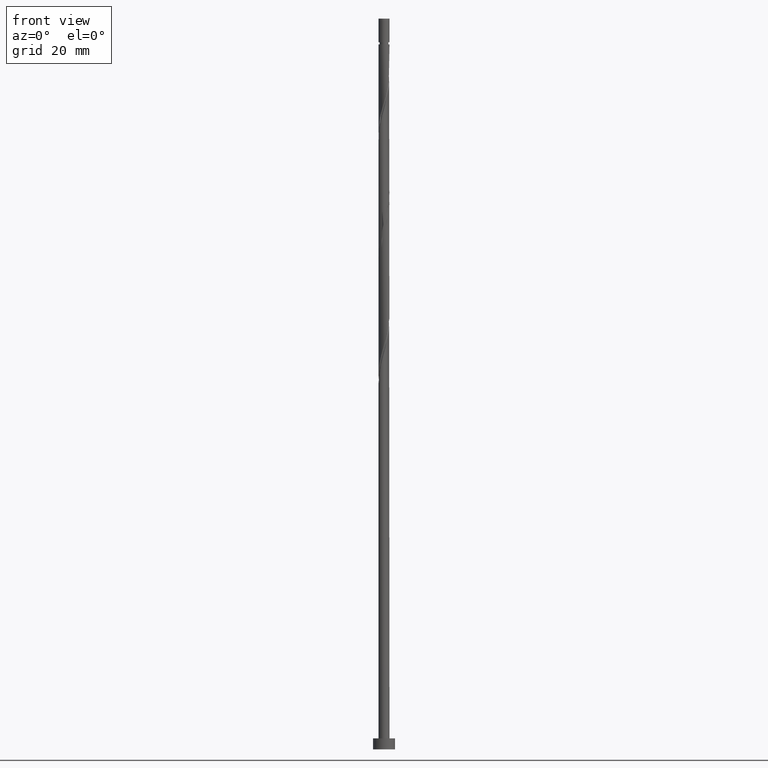
[diagram: clean part render]
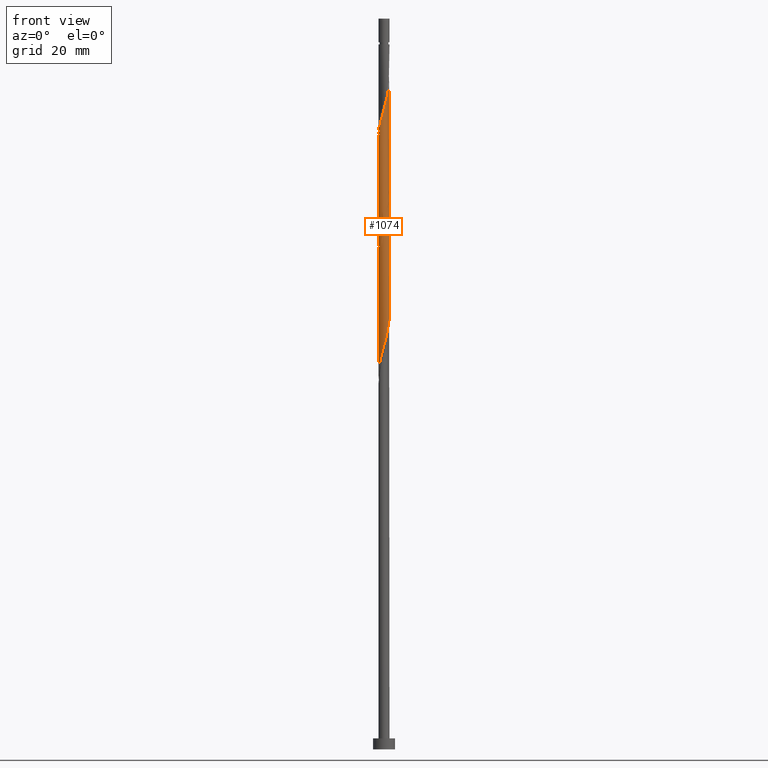
[diagram: same view with one face highlighted and labeled with its STEP entity id]
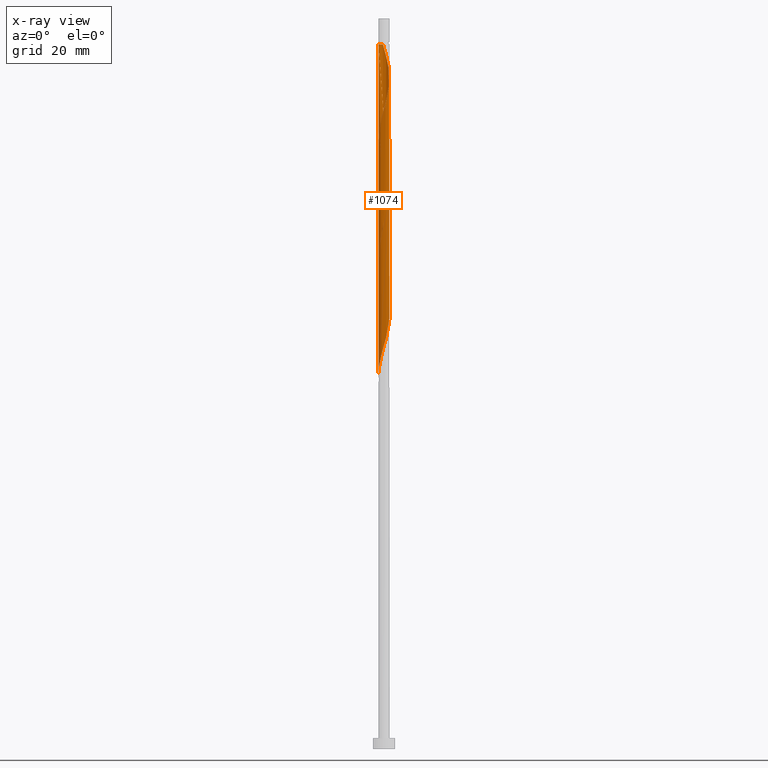
[diagram: x-ray of the same camera — body ghosted, the highlighted face saturated]
A machine part, front view. The second image highlights one B-rep face of the part: STEP entity #1074.
The next image is the same camera in x-ray: the body ghosted, the highlighted face saturated — about 0% of this face is hidden behind the body in this view.
In plain terms, the highlighted cylindrical surface (bore or boss wall) has radius 1.5 mm, axis along (-0, -0, -1).
Its self-contained STEP definition (entity closure, byte-faithful):
#1 = CARTESIAN_POINT ( 'NONE',  ( 1.422305459129118654, 0.4764946809057868382, 120.7228078568822838 ) ) ;
#7 = CARTESIAN_POINT ( 'NONE',  ( -0.6637447469323237703, 1.359573744300762499, 163.0839189679933838 ) ) ;
#10 = CARTESIAN_POINT ( 'NONE',  ( -1.497167474153212607, -0.09213877760036806586, 136.0005856346600410 ) ) ;
#17 = CARTESIAN_POINT ( 'NONE',  ( 1.359573744300762721, 0.6637447469323224380, 154.7505856346601263 ) ) ;
#23 = CARTESIAN_POINT ( 'NONE',  ( 1.497167474153212607, 0.09213877760036749687, 119.3339189679934123 ) ) ;
#27 = CARTESIAN_POINT ( 'NONE',  ( 1.422305459129118654, 0.4764946809057868382, 154.0561411902156692 ) ) ;
#31 = CARTESIAN_POINT ( 'NONE',  ( -0.2984962311319871997, -1.470000000000000195, 142.9450300791045265 ) ) ;
#34 = EDGE_LOOP ( 'NONE', ( #411, #795, #1118, #253, #500, #1050, #240, #874 ) ) ;
#40 = CARTESIAN_POINT ( 'NONE',  ( -0.8455530274166268567, -1.254606684622246782, 107.5283634124378409 ) ) ;
#69 = DIRECTION ( 'NONE',  ( -0.000000000000000000, -0.000000000000000000, -1.000000000000000000 ) ) ;
#71 = CYLINDRICAL_SURFACE ( 'NONE', #860, 1.500000000000000222 ) ;
#73 = CARTESIAN_POINT ( 'NONE',  ( -1.500000000000001110, -0.1507556722888847844, 167.4148897930836881 ) ) ;
#81 = CARTESIAN_POINT ( 'NONE',  ( -0.2984962311320309425, 1.470000000000440732, 192.9450300791046118 ) ) ;
#90 = CARTESIAN_POINT ( 'NONE',  ( 1.470000000000001528, 0.2984962311319869221, 184.6116967457711837 ) ) ;
#99 = CARTESIAN_POINT ( 'NONE',  ( 1.430702225651051984, 0.4920254025854590152, 185.3061411902155555 ) ) ;
#110 = CARTESIAN_POINT ( 'NONE',  ( 1.141457610771798636, -0.9930117713720176820, 179.7505856346600126 ) ) ;
#120 =( BOUNDED_CURVE ( )  B_SPLINE_CURVE ( 2, ( #1301, #1556, #933, #397, #762, #873, #1007, #1140, #751, #7, #1134, #390, #1270, #1020, #1257, #1507, #145, #247, #258, #401, #1523, #17, #27, #1532, #409, #907, #789 ),
 .UNSPECIFIED., .F., .T. ) 
 B_SPLINE_CURVE_WITH_KNOTS ( ( 3, 2, 2, 2, 2, 2, 2, 2, 2, 2, 2, 2, 2, 3 ),
 ( 0.4295317669814463502, 0.4375000000000000000, 0.4479166666666666852, 0.4583333333333333148, 0.4687500000000000000, 0.4791666666666666852, 0.4895833333333333148, 0.5000000000000000000, 0.5104166666666666297, 0.5208333333333333703, 0.5312500000000000000, 0.5416666666666666297, 0.5520833333333333703, 0.5545317669814464612 ),
 .UNSPECIFIED. ) 
 CURVE ( )  GEOMETRIC_REPRESENTATION_ITEM ( )  RATIONAL_B_SPLINE_CURVE ( ( 0.9062941362546607094, 0.9031415850403650136, 0.9090909090909403689, 0.9013135103398587367, 0.9090909090909403689, 0.9013135103398587367, 0.9090909090909403689, 0.9013135103398587367, 0.9090909090909403689, 0.9013135103398587367, 0.9090909090909403689, 0.9013135103398587367, 0.9090909090909403689, 0.9013135103398587367, 0.9090909090909403689, 0.9013135103398587367, 0.9090909090909403689, 0.9013135103398587367, 0.9090909090909403689, 0.9013135103398587367, 0.9090909090909403689, 0.9013135103398587367, 0.9090909090909403689, 0.9013135103398587367, 0.9090909090909403689, 0.9072628343904339809, 0.9062941362546604873 ) ) 
 REPRESENTATION_ITEM ( '' )  );
#121 = CARTESIAN_POINT ( 'NONE',  ( -0.1049670596785155646, -1.509297774348951293, 143.6394745235489552 ) ) ;
#129 = CARTESIAN_POINT ( 'NONE',  ( 1.485037173957474588, 0.2892446148792506277, 120.0283634124378267 ) ) ;
#131 = VERTEX_POINT ( 'NONE', #1260 ) ;
#140 = CARTESIAN_POINT ( 'NONE',  ( 0.09213877760036760789, -1.497167474153212607, 144.3339189679933270 ) ) ;
#145 = CARTESIAN_POINT ( 'NONE',  ( 0.6687892150010441572, 1.342654455136647718, 158.2228078568823264 ) ) ;
#149 = CARTESIAN_POINT ( 'NONE',  ( 0.9935053190942129131, 1.123809227997130566, 123.5005856346600837 ) ) ;
#157 = CARTESIAN_POINT ( 'NONE',  ( 0.2892446148792507388, -1.485037173957474588, 145.0283634124378409 ) ) ;
#166 = CARTESIAN_POINT ( 'NONE',  ( -0.6687892150010432690, -1.342654455136647940, 108.2228078568822838 ) ) ;
#173 = CARTESIAN_POINT ( 'NONE',  ( 0.4764946809057873933, -1.422305459129118654, 112.3894745235489410 ) ) ;
#177 = DIRECTION ( 'NONE',  ( -0.000000000000000000, -0.000000000000000000, -1.000000000000000000 ) ) ;
#237 = CARTESIAN_POINT ( 'NONE',  ( -0.8283782591521712257, -1.250515677536281123, 172.1116967457712121 ) ) ;
#240 = ORIENTED_EDGE ( 'NONE', *, *, #323, .T. ) ;
#241 = CARTESIAN_POINT ( 'NONE',  ( -1.359573744300762721, -0.6637447469323233262, 138.0839189679933838 ) ) ;
#244 = CARTESIAN_POINT ( 'NONE',  ( 1.123809227997133231, 0.9935053190942123580, 187.3894745235489268 ) ) ;
#245 = EDGE_CURVE ( 'NONE', #1503, #511, #1051, .T. ) ;
#247 = CARTESIAN_POINT ( 'NONE',  ( 0.8455530274166275229, 1.254606684622246338, 157.5283634124378409 ) ) ;
#252 = CARTESIAN_POINT ( 'NONE',  ( 1.509297774348951293, -0.1049670596785156618, 118.6394745235489552 ) ) ;
#253 = ORIENTED_EDGE ( 'NONE', *, *, #731, .T. ) ;
#258 = CARTESIAN_POINT ( 'NONE',  ( 0.9935053190942129131, 1.123809227997130566, 156.8339189679933838 ) ) ;
#263 = CARTESIAN_POINT ( 'NONE',  ( -1.470000000000000195, 0.2984962311319871997, 134.6116967457711837 ) ) ;
#273 = CARTESIAN_POINT ( 'NONE',  ( 0.1049670596785151205, 1.509297774348950849, 126.9728078568823122 ) ) ;
#320 = VERTEX_POINT ( 'NONE', #679 ) ;
#322 = DIRECTION ( 'NONE',  ( -1.000000000000000000, 0.000000000000000000, 0.000000000000000000 ) ) ;
#323 = EDGE_CURVE ( 'NONE', #1619, #1412, #1177, .T. ) ;
#342 = CARTESIAN_POINT ( 'NONE',  ( 0.4764946809057893917, 1.422305459129119765, 190.1672523013266414 ) ) ;
#357 = CARTESIAN_POINT ( 'NONE',  ( -0.6637447469323254357, -1.359573744300763609, 172.8061411902155555 ) ) ;
#368 = CARTESIAN_POINT ( 'NONE',  ( 0.4920254025854602919, 1.430702225651048876, 125.5839189679934265 ) ) ;
#369 = EDGE_CURVE ( 'NONE', #511, #1412, #120, .T. ) ;
#372 = CARTESIAN_POINT ( 'NONE',  ( 0.8283782591521714478, 1.250515677536281123, 188.7783634124378125 ) ) ;
#376 = CARTESIAN_POINT ( 'NONE',  ( 0.8283782591521688943, -1.250515677536280457, 147.1116967457711837 ) ) ;
#384 = CARTESIAN_POINT ( 'NONE',  ( 0.9930117713720151285, -1.141457610771798414, 147.8061411902155839 ) ) ;
#390 = CARTESIAN_POINT ( 'NONE',  ( -0.2892446148792516825, 1.485037173957474366, 161.6950300791044697 ) ) ;
#396 = CARTESIAN_POINT ( 'NONE',  ( -0.8283782591521697825, 1.250515677536280235, 130.4450300791044981 ) ) ;
#397 = CARTESIAN_POINT ( 'NONE',  ( -1.430702225651049320, 0.4920254025854591262, 167.2505856346600126 ) ) ;
#401 = CARTESIAN_POINT ( 'NONE',  ( 1.141457610771798414, 0.9930117713720151285, 156.1394745235489836 ) ) ;
#405 = CARTESIAN_POINT ( 'NONE',  ( 1.254606684622246338, -0.8455530274166274118, 115.8616967457711695 ) ) ;
#409 = CARTESIAN_POINT ( 'NONE',  ( 1.497167474153212607, 0.09213877760036749687, 152.6672523013267551 ) ) ;
#411 = ORIENTED_EDGE ( 'NONE', *, *, #245, .F. ) ;
#413 = CARTESIAN_POINT ( 'NONE',  ( 0.2892446148792507388, -1.485037173957474588, 111.6950300791044981 ) ) ;
#421 = CARTESIAN_POINT ( 'NONE',  ( -1.359573744300762721, -0.6637447469323233262, 104.7505856346600410 ) ) ;
#464 = CARTESIAN_POINT ( 'NONE',  ( 1.250515677536280901, -0.8283782591521717809, 180.4450300791044413 ) ) ;
#471 = CARTESIAN_POINT ( 'NONE',  ( 0.2984962311319870332, -1.470000000000001528, 176.2783634124378409 ) ) ;
#478 = DIRECTION ( 'NONE',  ( -0.000000000000000000, -0.000000000000000000, -1.000000000000000000 ) ) ;
#480 = CARTESIAN_POINT ( 'NONE',  ( 1.342654455136650382, 0.6687892150010426029, 186.0005856346600410 ) ) ;
#494 = CARTESIAN_POINT ( 'NONE',  ( -1.500000000000000222, -2.691681199851567309E-16, 169.0085967343145796 ) ) ;
#499 = CARTESIAN_POINT ( 'NONE',  ( 1.497167474153215050, -0.09213877760036973119, 183.2228078568822696 ) ) ;
#500 = ORIENTED_EDGE ( 'NONE', *, *, #1367, .F. ) ;
#505 = CARTESIAN_POINT ( 'NONE',  ( 1.141457610771798414, 0.9930117713720151285, 122.8061411902156124 ) ) ;
#511 = VERTEX_POINT ( 'NONE', #494 ) ;
#525 =( BOUNDED_CURVE ( )  B_SPLINE_CURVE ( 2, ( #1024, #893, #647, #775, #654, #1502, #1006, #384, #376, #1153, #633, #157, #140, #121, #31, #1372, #640, #989, #872, #1518, #1510, #241, #883, #1139, #10, #1388, #263, #1495, #750, #761, #1243, #1130, #396, #1398, #626, #1378, #1252, #273, #768, #368, #902, #1274, #149, #505, #744, #1146, #1, #129, #23, #252, #530, #866, #1528, #405, #1124, #1405, #1626, #1280, #173, #413, #786, #1176, #1041, #1424, #166, #40, #548, #1543, #912, #421, #1325, #1192, #1316, #661, #1061 ),
 .UNSPECIFIED., .F., .T. ) 
 B_SPLINE_CURVE_WITH_KNOTS ( ( 3, 2, 2, 2, 2, 2, 2, 2, 2, 2, 2, 2, 2, 2, 2, 2, 2, 2, 2, 2, 2, 2, 2, 2, 2, 2, 2, 2, 2, 2, 2, 2, 2, 2, 2, 2, 2, 3 ),
 ( 0.5545317669814464612, 0.5625000000000000000, 0.5729166666666666297, 0.5833333333333333703, 0.5937500000000000000, 0.6041666666666666297, 0.6145833333333333703, 0.6250000000000000000, 0.6354166666666666297, 0.6458333333333333703, 0.6562500000000000000, 0.6666666666666666297, 0.6770833333333333703, 0.6875000000000000000, 0.6979166666666666297, 0.7083333333333333703, 0.7187500000000000000, 0.7291666666666666297, 0.7395833333333333703, 0.7500000000000000000, 0.7604166666666666297, 0.7708333333333333703, 0.7812500000000000000, 0.7916666666666666297, 0.8020833333333333703, 0.8125000000000000000, 0.8229166666666666297, 0.8333333333333333703, 0.8437500000000000000, 0.8541666666666666297, 0.8645833333333333703, 0.8750000000000000000, 0.8854166666666666297, 0.8958333333333333703, 0.9062500000000000000, 0.9166666666666667407, 0.9270833333333334814, 0.9295317669814462391 ),
 .UNSPECIFIED. ) 
 CURVE ( )  GEOMETRIC_REPRESENTATION_ITEM ( )  RATIONAL_B_SPLINE_CURVE ( ( 0.9062941362546604873, 0.9031415850403650136, 0.9090909090909403689, 0.9013135103398587367, 0.9090909090909403689, 0.9013135103398587367, 0.9090909090909403689, 0.9013135103398587367, 0.9090909090909403689, 0.9013135103398587367, 0.9090909090909403689, 0.9013135103398587367, 0.9090909090909403689, 0.9013135103398587367, 0.9090909090909403689, 0.9013135103398587367, 0.9090909090909403689, 0.9013135103398587367, 0.9090909090909403689, 0.9013135103398587367, 0.9090909090909403689, 0.9013135103398587367, 0.9090909090909403689, 0.9013135103398587367, 0.9090909090909403689, 0.9013135103398587367, 0.9090909090909403689, 0.9013135103398587367, 0.9090909090909403689, 0.9013135103398587367, 0.9090909090909403689, 0.9013135103398587367, 0.9090909090909403689, 0.9013135103398587367, 0.9090909090909403689, 0.9013135103398587367, 0.9090909090909403689, 0.9013135103398587367, 0.9090909090909403689, 0.9013135103398587367, 0.9090909090909403689, 0.9013135103398587367, 0.9090909090909403689, 0.9013135103398587367, 0.9090909090909403689, 0.9013135103398587367, 0.9090909090909403689, 0.9013135103398587367, 0.9090909090909403689, 0.9013135103398587367, 0.9090909090909403689, 0.9013135103398587367, 0.9090909090909403689, 0.9013135103398587367, 0.9090909090909403689, 0.9013135103398587367, 0.9090909090909403689, 0.9013135103398587367, 0.9090909090909403689, 0.9013135103398587367, 0.9090909090909403689, 0.9013135103398587367, 0.9090909090909403689, 0.9013135103398587367, 0.9090909090909403689, 0.9013135103398587367, 0.9090909090909403689, 0.9013135103398587367, 0.9090909090909403689, 0.9013135103398587367, 0.9090909090909403689, 0.9013135103398587367, 0.9090909090909403689, 0.9072628343904342030, 0.9062941362546607094 ) ) 
 REPRESENTATION_ITEM ( '' )  );
#530 = CARTESIAN_POINT ( 'NONE',  ( 1.470000000000000195, -0.2984962311319873107, 117.9450300791045265 ) ) ;
#548 = CARTESIAN_POINT ( 'NONE',  ( -0.9935053190942129131, -1.123809227997130789, 106.8339189679934265 ) ) ;
#574 = CARTESIAN_POINT ( 'NONE',  ( -1.499999999999988676, 0.000000000000000000, 192.9450300791045265 ) ) ;
#576 = FACE_OUTER_BOUND ( 'NONE', #34, .T. ) ;
#582 = DIRECTION ( 'NONE',  ( -0.000000000000000000, -0.000000000000000000, -1.000000000000000000 ) ) ;
#591 = CARTESIAN_POINT ( 'NONE',  ( 0.1049670596785144822, -1.509297774348952625, 175.5839189679934407 ) ) ;
#609 = CARTESIAN_POINT ( 'NONE',  ( -1.123809227997133009, -0.9935053190942130241, 170.7228078568822696 ) ) ;
#626 = CARTESIAN_POINT ( 'NONE',  ( -0.4764946809057876154, 1.422305459129118654, 129.0561411902156408 ) ) ;
#633 = CARTESIAN_POINT ( 'NONE',  ( 0.4764946809057873933, -1.422305459129118654, 145.7228078568822127 ) ) ;
#640 = CARTESIAN_POINT ( 'NONE',  ( -0.6687892150010432690, -1.342654455136647940, 141.5561411902156408 ) ) ;
#647 = CARTESIAN_POINT ( 'NONE',  ( 1.470000000000000195, -0.2984962311319873107, 151.2783634124378409 ) ) ;
#654 = CARTESIAN_POINT ( 'NONE',  ( 1.342654455136647718, -0.6687892150010440462, 149.8894745235489268 ) ) ;
#661 = CARTESIAN_POINT ( 'NONE',  ( -1.500000000000000000, -0.04611292748651049656, 102.5050937556760857 ) ) ;
#675 =( BOUNDED_CURVE ( )  B_SPLINE_CURVE ( 2, ( #949, #73, #1578, #1338, #1482, #1375, #609, #862, #237, #357, #1086, #1346, #1102, #591, #471, #1606, #1223, #970, #1233, #110, #464, #1238, #1110, #1369, #499, #868, #90, #99, #480, #1214, #244, #845, #372, #854, #342, #1206, #1588, #1361, #81 ),
 .UNSPECIFIED., .F., .T. ) 
 B_SPLINE_CURVE_WITH_KNOTS ( ( 3, 2, 2, 2, 2, 2, 2, 2, 2, 2, 2, 2, 2, 2, 2, 2, 2, 2, 2, 3 ),
 ( 0.5545317669814463502, 0.5625000000000000000, 0.5729166666666667407, 0.5833333333333332593, 0.5937500000000000000, 0.6041666666666667407, 0.6145833333333332593, 0.6250000000000000000, 0.6354166666666667407, 0.6458333333333332593, 0.6562500000000000000, 0.6666666666666668517, 0.6770833333333333703, 0.6875000000000001110, 0.6979166666666668517, 0.7083333333333333703, 0.7187500000000001110, 0.7291666666666668517, 0.7395833333333333703, 0.7500000000000001110 ),
 .UNSPECIFIED. ) 
 CURVE ( )  GEOMETRIC_REPRESENTATION_ITEM ( )  RATIONAL_B_SPLINE_CURVE ( ( 0.9062941362546661495, 0.9031415850403706758, 0.9090909090909460311, 0.9013135103398642878, 0.9090909090909460311, 0.9013135103398642878, 0.9090909090909460311, 0.9013135103398642878, 0.9090909090909460311, 0.9013135103398642878, 0.9090909090909460311, 0.9013135103398642878, 0.9090909090909460311, 0.9013135103398642878, 0.9090909090909460311, 0.9013135103398642878, 0.9090909090909460311, 0.9013135103398642878, 0.9090909090909460311, 0.9013135103398642878, 0.9090909090909460311, 0.9013135103398642878, 0.9090909090909460311, 0.9013135103398642878, 0.9090909090909460311, 0.9013135103398642878, 0.9090909090909460311, 0.9013135103398642878, 0.9090909090909460311, 0.9013135103398642878, 0.9090909090909460311, 0.9013135103398642878, 0.9090909090909460311, 0.9013135103398642878, 0.9090909090909460311, 0.9013135103398642878, 0.9090909090909460311, 0.9013135103398642878, 0.9090909090909460311 ) ) 
 REPRESENTATION_ITEM ( '' )  );
#679 = CARTESIAN_POINT ( 'NONE',  ( -0.2984962311320309425, 1.470000000000440732, 192.9450300791046118 ) ) ;
#698 = CARTESIAN_POINT ( 'NONE',  ( -1.500000000000000222, 0.000000000000000000, 200.0000000000000000 ) ) ;
#731 = EDGE_CURVE ( 'NONE', #131, #1382, #828, .T. ) ;
#744 = CARTESIAN_POINT ( 'NONE',  ( 1.250515677536280235, 0.8283782591521694494, 122.1116967457711837 ) ) ;
#750 = CARTESIAN_POINT ( 'NONE',  ( -1.342654455136647940, 0.6687892150010432690, 133.2228078568822980 ) ) ;
#751 = CARTESIAN_POINT ( 'NONE',  ( -0.8283782591521697825, 1.250515677536280235, 163.7783634124378409 ) ) ;
#761 = CARTESIAN_POINT ( 'NONE',  ( -1.254606684622246782, 0.8455530274166268567, 132.5283634124378409 ) ) ;
#762 = CARTESIAN_POINT ( 'NONE',  ( -1.342654455136647940, 0.6687892150010432690, 166.5561411902156408 ) ) ;
#768 = CARTESIAN_POINT ( 'NONE',  ( 0.2984962311319873107, 1.470000000000000195, 126.2783634124378693 ) ) ;
#775 = CARTESIAN_POINT ( 'NONE',  ( 1.430702225651048876, -0.4920254025854601809, 150.5839189679933838 ) ) ;
#786 = CARTESIAN_POINT ( 'NONE',  ( 0.09213877760036760789, -1.497167474153212607, 111.0005856346600694 ) ) ;
#789 = CARTESIAN_POINT ( 'NONE',  ( 1.500000000000000222, 1.435563306587502499E-15, 152.3419300676478940 ) ) ;
#795 = ORIENTED_EDGE ( 'NONE', *, *, #1437, .T. ) ;
#802 = EDGE_CURVE ( 'NONE', #131, #320, #675, .T. ) ;
#810 = CARTESIAN_POINT ( 'NONE',  ( 0.000000000000000000, 0.000000000000000000, 192.9450300791045265 ) ) ;
#822 = VECTOR ( 'NONE', #69, 1000.000000000000000 ) ;
#828 = LINE ( 'NONE', #698, #1463 ) ;
#845 = CARTESIAN_POINT ( 'NONE',  ( 0.9930117713720183481, 1.141457610771798192, 188.0839189679934123 ) ) ;
#854 = CARTESIAN_POINT ( 'NONE',  ( 0.6637447469323256577, 1.359573744300763387, 189.4728078568822696 ) ) ;
#860 = AXIS2_PLACEMENT_3D ( 'NONE', #1426, #582, #1077 ) ;
#862 = CARTESIAN_POINT ( 'NONE',  ( -0.9930117713720176820, -1.141457610771798636, 171.4172523013267266 ) ) ;
#866 = CARTESIAN_POINT ( 'NONE',  ( 1.430702225651048876, -0.4920254025854601809, 117.2505856346600552 ) ) ;
#868 = CARTESIAN_POINT ( 'NONE',  ( 1.509297774348952625, 0.1049670596785136911, 183.9172523013267551 ) ) ;
#871 = VECTOR ( 'NONE', #177, 1000.000000000000000 ) ;
#872 = CARTESIAN_POINT ( 'NONE',  ( -0.9935053190942129131, -1.123809227997130789, 140.1672523013266982 ) ) ;
#873 = CARTESIAN_POINT ( 'NONE',  ( -1.254606684622246782, 0.8455530274166268567, 165.8616967457711837 ) ) ;
#874 = ORIENTED_EDGE ( 'NONE', *, *, #369, .F. ) ;
#883 = CARTESIAN_POINT ( 'NONE',  ( -1.422305459129118654, -0.4764946809057875043, 137.3894745235489552 ) ) ;
#893 = CARTESIAN_POINT ( 'NONE',  ( 1.500000000000000222, -0.1507556722888859502, 151.8085036984586225 ) ) ;
#902 = CARTESIAN_POINT ( 'NONE',  ( 0.6687892150010441572, 1.342654455136647718, 124.8894745235489410 ) ) ;
#907 = CARTESIAN_POINT ( 'NONE',  ( 1.500000000000000888, 0.04611292748650581280, 152.5050937556760857 ) ) ;
#912 = CARTESIAN_POINT ( 'NONE',  ( -1.250515677536280013, -0.8283782591521695604, 105.4450300791044839 ) ) ;
#933 = CARTESIAN_POINT ( 'NONE',  ( -1.470000000000000195, 0.2984962311319871997, 167.9450300791045265 ) ) ;
#940 = CARTESIAN_POINT ( 'NONE',  ( 1.500000000000000222, 1.836970198721030181E-16, 192.9450300791046118 ) ) ;
#949 = CARTESIAN_POINT ( 'NONE',  ( -1.500000000000002220, 9.570422043916622849E-16, 166.8814634238944450 ) ) ;
#970 = CARTESIAN_POINT ( 'NONE',  ( 0.8455530274166269677, -1.254606684622249224, 178.3616967457711837 ) ) ;
#989 = CARTESIAN_POINT ( 'NONE',  ( -0.8455530274166268567, -1.254606684622246782, 140.8616967457711837 ) ) ;
#1006 = CARTESIAN_POINT ( 'NONE',  ( 1.123809227997130789, -0.9935053190942129131, 148.5005856346600410 ) ) ;
#1007 = CARTESIAN_POINT ( 'NONE',  ( -1.123809227997131233, 0.9935053190942124690, 165.1672523013266982 ) ) ;
#1020 = CARTESIAN_POINT ( 'NONE',  ( 0.1049670596785151205, 1.509297774348950849, 160.3061411902156408 ) ) ;
#1024 = CARTESIAN_POINT ( 'NONE',  ( 1.500000000000000222, 1.435563306587502499E-15, 152.3419300676478940 ) ) ;
#1041 = CARTESIAN_POINT ( 'NONE',  ( -0.2984962311319871997, -1.470000000000000195, 109.6116967457711695 ) ) ;
#1047 = CIRCLE ( 'NONE', #1201, 1.499999999999988676 ) ;
#1050 = ORIENTED_EDGE ( 'NONE', *, *, #323, .F. ) ;
#1051 = LINE ( 'NONE', #1550, #871 ) ;
#1061 = CARTESIAN_POINT ( 'NONE',  ( -1.500000000000000222, -1.861746163230667258E-15, 102.3419300676479224 ) ) ;
#1074 = ADVANCED_FACE ( 'NONE', ( #576 ), #71, .T. ) ;
#1077 = DIRECTION ( 'NONE',  ( -1.000000000000000000, 0.000000000000000000, 0.000000000000000000 ) ) ;
#1086 = CARTESIAN_POINT ( 'NONE',  ( -0.4764946809057892807, -1.422305459129119987, 173.5005856346600694 ) ) ;
#1102 = CARTESIAN_POINT ( 'NONE',  ( -0.09213877760036894016, -1.497167474153214606, 174.8894745235488983 ) ) ;
#1110 = CARTESIAN_POINT ( 'NONE',  ( 1.422305459129119987, -0.4764946809057893917, 181.8339189679934407 ) ) ;
#1118 = ORIENTED_EDGE ( 'NONE', *, *, #802, .F. ) ;
#1124 = CARTESIAN_POINT ( 'NONE',  ( 1.123809227997130789, -0.9935053190942129131, 115.1672523013267408 ) ) ;
#1130 = CARTESIAN_POINT ( 'NONE',  ( -0.9930117713720157946, 1.141457610771797970, 131.1394745235489268 ) ) ;
#1134 = CARTESIAN_POINT ( 'NONE',  ( -0.4764946809057876154, 1.422305459129118654, 162.3894745235489836 ) ) ;
#1139 = CARTESIAN_POINT ( 'NONE',  ( -1.485037173957474366, -0.2892446148792511829, 136.6950300791044981 ) ) ;
#1140 = CARTESIAN_POINT ( 'NONE',  ( -0.9930117713720157946, 1.141457610771797970, 164.4728078568822980 ) ) ;
#1146 = CARTESIAN_POINT ( 'NONE',  ( 1.359573744300762721, 0.6637447469323224380, 121.4172523013266840 ) ) ;
#1153 = CARTESIAN_POINT ( 'NONE',  ( 0.6637447469323233262, -1.359573744300762721, 146.4172523013267266 ) ) ;
#1160 = CARTESIAN_POINT ( 'NONE',  ( -1.500000000000000222, -1.861746163230667258E-15, 102.3419300676479224 ) ) ;
#1176 = CARTESIAN_POINT ( 'NONE',  ( -0.1049670596785155646, -1.509297774348951293, 110.3061411902156266 ) ) ;
#1177 = LINE ( 'NONE', #1185, #822 ) ;
#1185 = CARTESIAN_POINT ( 'NONE',  ( 1.500000000000000222, 1.836970198721030181E-16, 200.0000000000000000 ) ) ;
#1192 = CARTESIAN_POINT ( 'NONE',  ( -1.485037173957474366, -0.2892446148792511829, 103.3616967457711695 ) ) ;
#1201 = AXIS2_PLACEMENT_3D ( 'NONE', #810, #1444, #322 ) ;
#1206 = CARTESIAN_POINT ( 'NONE',  ( 0.2892446148792531257, 1.485037173957477030, 190.8616967457711269 ) ) ;
#1214 = CARTESIAN_POINT ( 'NONE',  ( 1.254606684622249224, 0.8455530274166267457, 186.6950300791044981 ) ) ;
#1223 = CARTESIAN_POINT ( 'NONE',  ( 0.6687892150010429360, -1.342654455136650382, 177.6672523013267266 ) ) ;
#1233 = CARTESIAN_POINT ( 'NONE',  ( 0.9935053190942130241, -1.123809227997133009, 179.0561411902155839 ) ) ;
#1238 = CARTESIAN_POINT ( 'NONE',  ( 1.359573744300763387, -0.6637447469323254357, 181.1394745235489552 ) ) ;
#1243 = CARTESIAN_POINT ( 'NONE',  ( -1.123809227997131233, 0.9935053190942124690, 131.8339189679933838 ) ) ;
#1252 = CARTESIAN_POINT ( 'NONE',  ( -0.09213877760036824627, 1.497167474153212607, 127.6672523013267551 ) ) ;
#1257 = CARTESIAN_POINT ( 'NONE',  ( 0.2984962311319873107, 1.470000000000000195, 159.6116967457712121 ) ) ;
#1260 = CARTESIAN_POINT ( 'NONE',  ( -1.500000000000002220, 9.570422043916622849E-16, 166.8814634238944166 ) ) ;
#1270 = CARTESIAN_POINT ( 'NONE',  ( -0.09213877760036824627, 1.497167474153212607, 161.0005856346600694 ) ) ;
#1274 = CARTESIAN_POINT ( 'NONE',  ( 0.8455530274166275229, 1.254606684622246338, 124.1950300791044839 ) ) ;
#1280 = CARTESIAN_POINT ( 'NONE',  ( 0.6637447469323233262, -1.359573744300762721, 113.0839189679933980 ) ) ;
#1298 = CARTESIAN_POINT ( 'NONE',  ( 1.500000000000000222, 1.435563306587502499E-15, 152.3419300676478940 ) ) ;
#1301 = CARTESIAN_POINT ( 'NONE',  ( -1.500000000000000222, -2.691681199851567309E-16, 169.0085967343145796 ) ) ;
#1316 = CARTESIAN_POINT ( 'NONE',  ( -1.497167474153212607, -0.09213877760036806586, 102.6672523013267551 ) ) ;
#1325 = CARTESIAN_POINT ( 'NONE',  ( -1.422305459129118654, -0.4764946809057875043, 104.0561411902155839 ) ) ;
#1338 = CARTESIAN_POINT ( 'NONE',  ( -1.430702225651051984, -0.4920254025854591262, 168.6394745235488983 ) ) ;
#1346 = CARTESIAN_POINT ( 'NONE',  ( -0.2892446148792523486, -1.485037173957477030, 174.1950300791044697 ) ) ;
#1361 = CARTESIAN_POINT ( 'NONE',  ( -0.1049670596785155924, 1.509297774348952625, 192.2505856346600126 ) ) ;
#1367 = EDGE_CURVE ( 'NONE', #1412, #1382, #525, .T. ) ;
#1369 = CARTESIAN_POINT ( 'NONE',  ( 1.485037173957477030, -0.2892446148792529592, 182.5283634124378693 ) ) ;
#1372 = CARTESIAN_POINT ( 'NONE',  ( -0.4920254025854594038, -1.430702225651049320, 142.2505856346600694 ) ) ;
#1375 = CARTESIAN_POINT ( 'NONE',  ( -1.254606684622249224, -0.8455530274166275229, 170.0283634124378409 ) ) ;
#1378 = CARTESIAN_POINT ( 'NONE',  ( -0.2892446148792516825, 1.485037173957474366, 128.3616967457711553 ) ) ;
#1382 = VERTEX_POINT ( 'NONE', #1160 ) ;
#1388 = CARTESIAN_POINT ( 'NONE',  ( -1.509297774348951293, 0.1049670596785154675, 135.3061411902156124 ) ) ;
#1398 = CARTESIAN_POINT ( 'NONE',  ( -0.6637447469323237703, 1.359573744300762499, 129.7505856346600410 ) ) ;
#1405 = CARTESIAN_POINT ( 'NONE',  ( 0.9930117713720151285, -1.141457610771798414, 114.4728078568822696 ) ) ;
#1412 = VERTEX_POINT ( 'NONE', #1298 ) ;
#1424 = CARTESIAN_POINT ( 'NONE',  ( -0.4920254025854594038, -1.430702225651049320, 108.9172523013266982 ) ) ;
#1426 = CARTESIAN_POINT ( 'NONE',  ( 0.000000000000000000, 0.000000000000000000, 200.0000000000000000 ) ) ;
#1437 = EDGE_CURVE ( 'NONE', #1503, #320, #1047, .T. ) ;
#1444 = DIRECTION ( 'NONE',  ( -0.000000000000000000, -0.000000000000000000, -1.000000000000000000 ) ) ;
#1463 = VECTOR ( 'NONE', #478, 1000.000000000000000 ) ;
#1482 = CARTESIAN_POINT ( 'NONE',  ( -1.342654455136649938, -0.6687892150010432690, 169.3339189679934123 ) ) ;
#1495 = CARTESIAN_POINT ( 'NONE',  ( -1.430702225651049320, 0.4920254025854591262, 133.9172523013267266 ) ) ;
#1502 = CARTESIAN_POINT ( 'NONE',  ( 1.254606684622246338, -0.8455530274166274118, 149.1950300791044697 ) ) ;
#1503 = VERTEX_POINT ( 'NONE', #574 ) ;
#1507 = CARTESIAN_POINT ( 'NONE',  ( 0.4920254025854602919, 1.430702225651048876, 158.9172523013267551 ) ) ;
#1510 = CARTESIAN_POINT ( 'NONE',  ( -1.250515677536280013, -0.8283782591521695604, 138.7783634124378409 ) ) ;
#1518 = CARTESIAN_POINT ( 'NONE',  ( -1.141457610771798414, -0.9930117713720153505, 139.4728078568822696 ) ) ;
#1523 = CARTESIAN_POINT ( 'NONE',  ( 1.250515677536280235, 0.8283782591521694494, 155.4450300791045265 ) ) ;
#1528 = CARTESIAN_POINT ( 'NONE',  ( 1.342654455136647718, -0.6687892150010440462, 116.5561411902155982 ) ) ;
#1532 = CARTESIAN_POINT ( 'NONE',  ( 1.485037173957474588, 0.2892446148792506277, 153.3616967457711269 ) ) ;
#1543 = CARTESIAN_POINT ( 'NONE',  ( -1.141457610771798414, -0.9930117713720153505, 106.1394745235489694 ) ) ;
#1550 = CARTESIAN_POINT ( 'NONE',  ( -1.500000000000000222, 0.000000000000000000, 200.0000000000000000 ) ) ;
#1556 = CARTESIAN_POINT ( 'NONE',  ( -1.500000000000000222, 0.1507556722888844791, 168.4751703651253365 ) ) ;
#1578 = CARTESIAN_POINT ( 'NONE',  ( -1.470000000000001528, -0.2984962311319871442, 167.9450300791044981 ) ) ;
#1588 = CARTESIAN_POINT ( 'NONE',  ( 0.09213877760036982834, 1.497167474153215050, 191.5561411902156124 ) ) ;
#1606 = CARTESIAN_POINT ( 'NONE',  ( 0.4920254025854591262, -1.430702225651051984, 176.9728078568822980 ) ) ;
#1619 = VERTEX_POINT ( 'NONE', #940 ) ;
#1626 = CARTESIAN_POINT ( 'NONE',  ( 0.8283782591521688943, -1.250515677536280457, 113.7783634124378551 ) ) ;